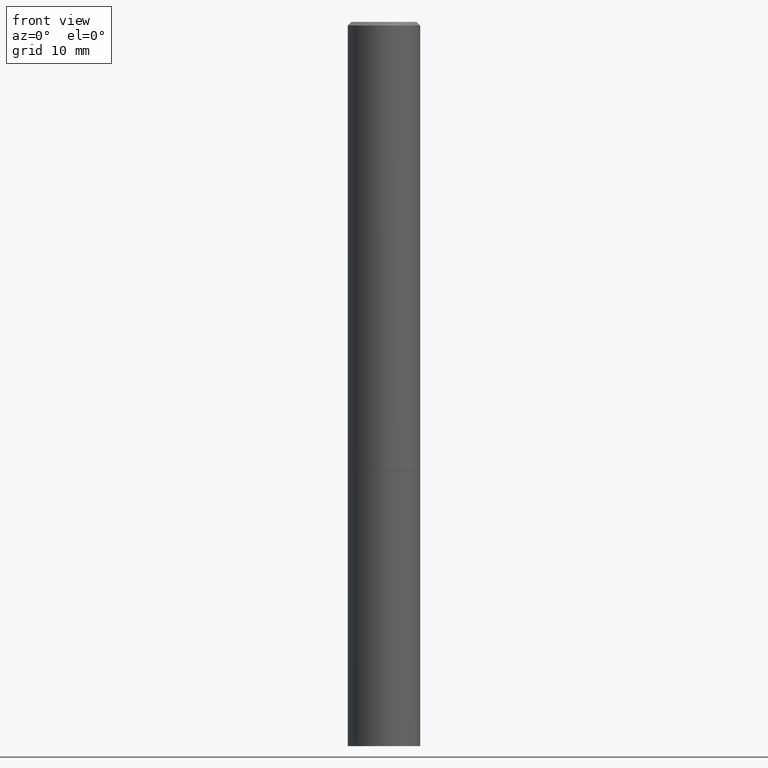
[diagram: clean part render]
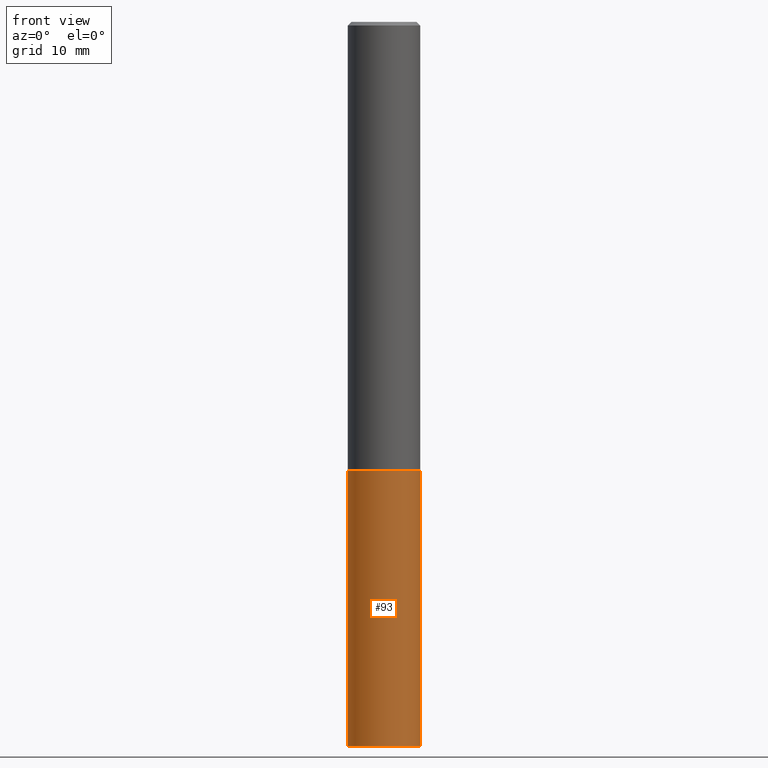
[diagram: same view with one face highlighted and labeled with its STEP entity id]
A machine part, front view. The second image highlights one B-rep face of the part: STEP entity #93.
In plain terms, the highlighted cylindrical surface (edge-blend (fillet) strip) has radius 5 mm, axis along (-0, 0, 1).
Its self-contained STEP definition (entity closure, byte-faithful):
#5 = DIRECTION ( 'NONE',  ( 1.000000000000000000, -6.982962677686262766E-15, 0.000000000000000000 ) ) ;
#16 = VERTEX_POINT ( 'NONE', #110 ) ;
#19 = DIRECTION ( 'NONE',  ( -2.445468806185136877E-29, 3.491481338843145188E-15, 1.000000000000000000 ) ) ;
#20 = VECTOR ( 'NONE', #351, 39.37007874015748143 ) ;
#36 = DIRECTION ( 'NONE',  ( 1.000000000000000000, -6.982962677686265922E-15, 4.876176775795935793E-29 ) ) ;
#41 = AXIS2_PLACEMENT_3D ( 'NONE', #48, #294, #209 ) ;
#44 = EDGE_LOOP ( 'NONE', ( #151, #96, #326, #205 ) ) ;
#48 = CARTESIAN_POINT ( 'NONE',  ( 9.627810689950883669E-29, -1.374596203102546341E-14, -3.937000000000000277 ) ) ;
#68 = VECTOR ( 'NONE', #19, 39.37007874015748143 ) ;
#89 = CIRCLE ( 'NONE', #353, 0.1968500000000000250 ) ;
#93 = ADVANCED_FACE ( 'NONE', ( #180 ), #345, .T. ) ;
#96 = ORIENTED_EDGE ( 'NONE', *, *, #284, .T. ) ;
#110 = CARTESIAN_POINT ( 'NONE',  ( -0.1968500000000000250, -9.735456040160091980E-15, -3.937000000000000277 ) ) ;
#114 = VERTEX_POINT ( 'NONE', #118 ) ;
#118 = CARTESIAN_POINT ( 'NONE',  ( 0.1968500000000000250, -9.896953003084774574E-15, -2.440900000000000070 ) ) ;
#120 = DIRECTION ( 'NONE',  ( -2.445468806185136597E-29, 3.491481338843145583E-15, 1.000000000000000000 ) ) ;
#138 = CARTESIAN_POINT ( 'NONE',  ( -0.1968500000000000250, -9.735456040160091980E-15, -2.440900000000000070 ) ) ;
#149 = VERTEX_POINT ( 'NONE', #138 ) ;
#151 = ORIENTED_EDGE ( 'NONE', *, *, #280, .F. ) ;
#180 = FACE_OUTER_BOUND ( 'NONE', #44, .T. ) ;
#198 = EDGE_CURVE ( 'NONE', #149, #114, #89, .T. ) ;
#205 = ORIENTED_EDGE ( 'NONE', *, *, #198, .F. ) ;
#209 = DIRECTION ( 'NONE',  ( 1.000000000000000000, -6.982962677686267499E-15, 0.000000000000000000 ) ) ;
#227 = VERTEX_POINT ( 'NONE', #314 ) ;
#245 = CIRCLE ( 'NONE', #41, 0.1968500000000000250 ) ;
#258 = CARTESIAN_POINT ( 'NONE',  ( 5.969144809017299038E-29, -8.522356799982232966E-15, -2.440900000000000070 ) ) ;
#267 = LINE ( 'NONE', #296, #68 ) ;
#268 = AXIS2_PLACEMENT_3D ( 'NONE', #316, #120, #36 ) ;
#280 = EDGE_CURVE ( 'NONE', #16, #149, #327, .T. ) ;
#284 = EDGE_CURVE ( 'NONE', #16, #227, #245, .T. ) ;
#286 = DIRECTION ( 'NONE',  ( -2.445468806185136597E-29, 3.491481338843145583E-15, 1.000000000000000000 ) ) ;
#294 = DIRECTION ( 'NONE',  ( -2.445468806185136597E-29, 3.491481338843145583E-15, 1.000000000000000000 ) ) ;
#296 = CARTESIAN_POINT ( 'NONE',  ( 0.1968500000000000250, -1.374596203102541608E-15, 9.598753983154300858E-30 ) ) ;
#302 = CARTESIAN_POINT ( 'NONE',  ( -0.1968500000000000250, 1.398703375343757393E-15, -9.682923725166783677E-30 ) ) ;
#306 = EDGE_CURVE ( 'NONE', #227, #114, #267, .T. ) ;
#314 = CARTESIAN_POINT ( 'NONE',  ( 0.1968500000000000250, -1.512055823412800660E-14, -3.937000000000000277 ) ) ;
#316 = CARTESIAN_POINT ( 'NONE',  ( 0.000000000000000000, 0.000000000000000000, 0.000000000000000000 ) ) ;
#326 = ORIENTED_EDGE ( 'NONE', *, *, #306, .T. ) ;
#327 = LINE ( 'NONE', #302, #20 ) ;
#345 = CYLINDRICAL_SURFACE ( 'NONE', #268, 0.1968500000000000250 ) ;
#351 = DIRECTION ( 'NONE',  ( -2.445468806185136877E-29, 3.491481338843145188E-15, 1.000000000000000000 ) ) ;
#353 = AXIS2_PLACEMENT_3D ( 'NONE', #258, #286, #5 ) ;